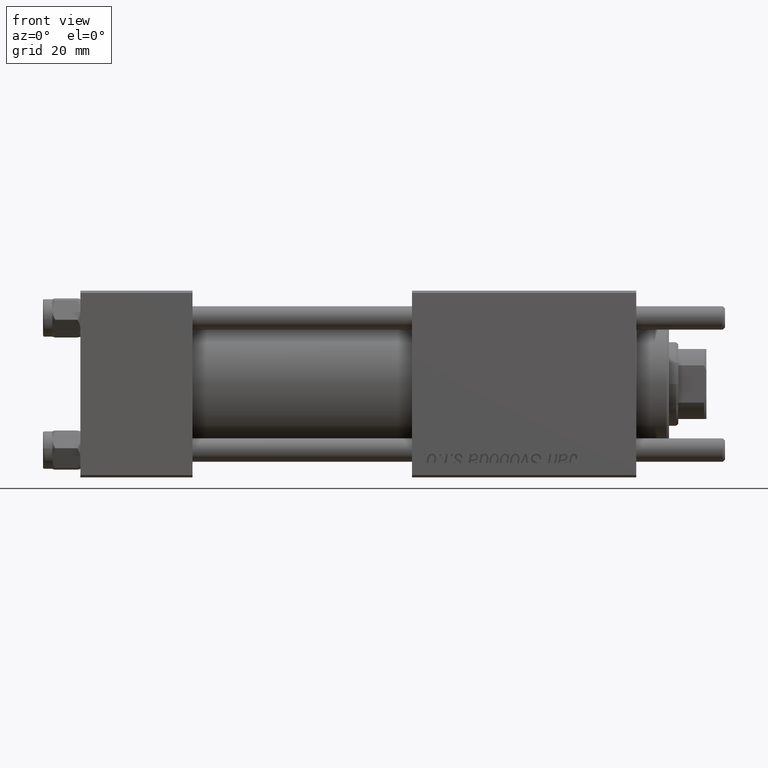
[diagram: clean part render]
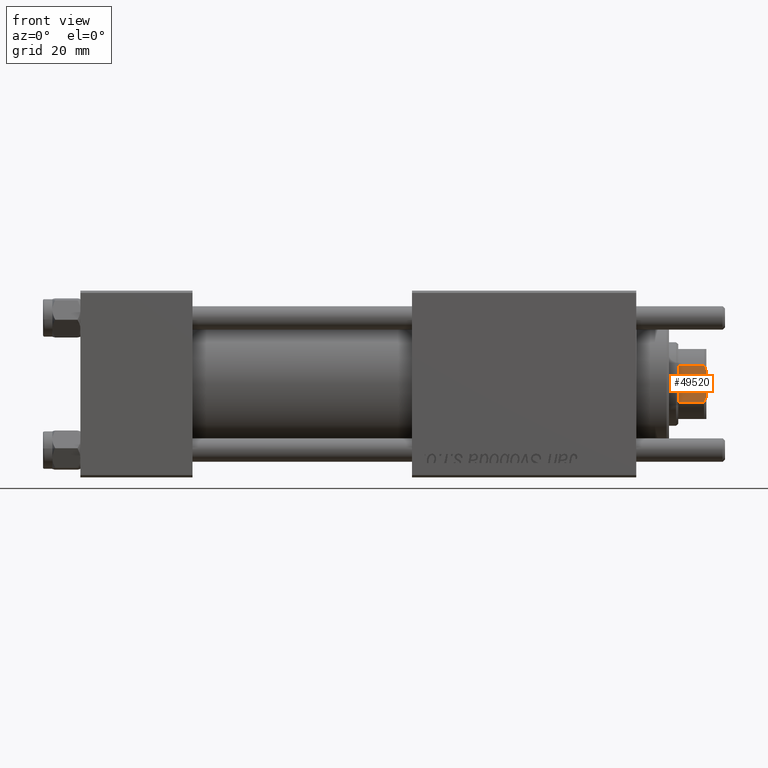
[diagram: same view with one face highlighted and labeled with its STEP entity id]
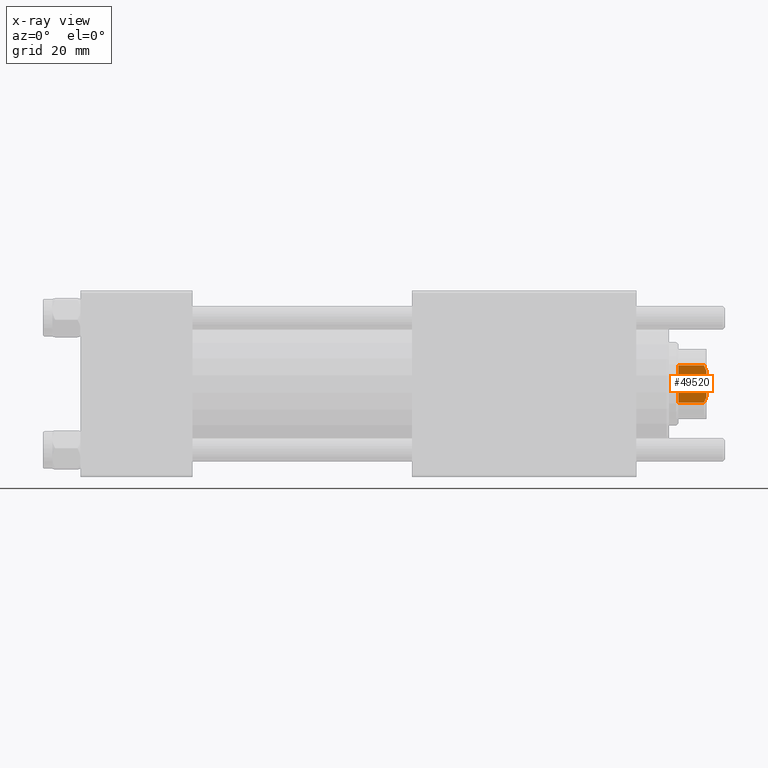
[diagram: x-ray of the same camera — body ghosted, the highlighted face saturated]
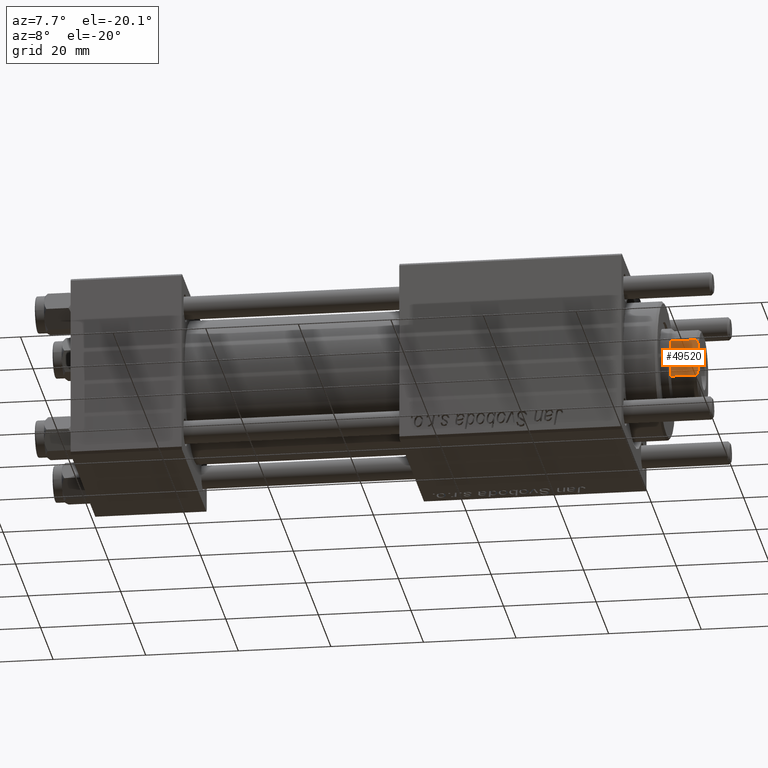
[diagram: same view with one face highlighted and labeled with its STEP entity id]
A machine part, front view. The second image highlights one B-rep face of the part: STEP entity #49520.
The next image is the same camera in x-ray: the body ghosted, the highlighted face saturated — about 0% of this face is hidden behind the body in this view.
A second angle (auxiliary view) of the same face is appended — the face is thin or edge-on in the first view.
In plain terms, the highlighted planar face has unit normal (0, 1, 0).
Its self-contained STEP definition (entity closure, byte-faithful):
#73 = ORIENTED_EDGE ( 'NONE', *, *, #36462, .T. ) ;
#1165 = ORIENTED_EDGE ( 'NONE', *, *, #38434, .T. ) ;
#2085 = LINE ( 'NONE', #2944, #49999 ) ;
#2621 = FACE_OUTER_BOUND ( 'NONE', #9218, .T. ) ;
#2944 = CARTESIAN_POINT ( 'NONE',  ( 7.500000000000000000, 4.000000000000001776, -0.001000000000001000089 ) ) ;
#3700 = CARTESIAN_POINT ( 'NONE',  ( 7.500000000000000888, 2.783882181414685686, 110.0000000000000000 ) ) ;
#3840 = ORIENTED_EDGE ( 'NONE', *, *, #26931, .F. ) ;
#5324 = DIRECTION ( 'NONE',  ( -1.156482317317871478E-16, 1.000000000000000000, -0.000000000000000000 ) ) ;
#6642 = PLANE ( 'NONE',  #53916 ) ;
#8400 = EDGE_CURVE ( 'NONE', #16599, #21967, #2085, .T. ) ;
#9218 = EDGE_LOOP ( 'NONE', ( #36314, #35440, #33140, #1165, #3840, #73 ) ) ;
#11335 = CARTESIAN_POINT ( 'NONE',  ( 7.500000000000000888, 2.783882181414685686, 110.0000000000000000 ) ) ;
#12800 = CARTESIAN_POINT ( 'NONE',  ( 7.500000000000000888, -2.783882181414683465, 110.0000000000000000 ) ) ;
#12826 = VERTEX_POINT ( 'NONE', #25149 ) ;
#12867 = LINE ( 'NONE', #16611, #31314 ) ;
#16599 = VERTEX_POINT ( 'NONE', #40748 ) ;
#16611 = CARTESIAN_POINT ( 'NONE',  ( 7.500000000000000000, -4.000000000000002665, -0.001000000000001000089 ) ) ;
#16631 = CARTESIAN_POINT ( 'NONE',  ( 7.500000000000000000, -4.000000000000002665, 109.4999999999998579 ) ) ;
#17494 = EDGE_CURVE ( 'NONE', #39850, #35235, #46477, .T. ) ;
#21138 = CARTESIAN_POINT ( 'NONE',  ( 7.500000000000000000, 4.000000000000001776, 109.4999999999998579 ) ) ;
#21967 = VERTEX_POINT ( 'NONE', #21138 ) ;
#22355 = VECTOR ( 'NONE', #5324, 1000.000000000000000 ) ;
#22527 = CARTESIAN_POINT ( 'NONE',  ( 7.500000000000000000, -4.000000000000002665, 109.4999999999998579 ) ) ;
#24143 = DIRECTION ( 'NONE',  ( -1.000000000000000000, -1.156482317317871478E-16, 0.000000000000000000 ) ) ;
#25149 = CARTESIAN_POINT ( 'NONE',  ( 7.500000000000000000, -4.000000000000002665, 104.0000000000000000 ) ) ;
#26931 = EDGE_CURVE ( 'NONE', #12826, #44007, #12867, .T. ) ;
#31314 = VECTOR ( 'NONE', #46695, 1000.000000000000000 ) ;
#33140 = ORIENTED_EDGE ( 'NONE', *, *, #17494, .F. ) ;
#34154 = CARTESIAN_POINT ( 'NONE',  ( 7.500000000000000000, 7.500000000000000000, 110.0000000000000000 ) ) ;
#34586 = CARTESIAN_POINT ( 'NONE',  ( 7.500000000000000888, -3.198463757182497869, 109.8557317173096379 ) ) ;
#35235 = VERTEX_POINT ( 'NONE', #3700 ) ;
#35440 = ORIENTED_EDGE ( 'NONE', *, *, #41789, .T. ) ;
#36314 = ORIENTED_EDGE ( 'NONE', *, *, #8400, .T. ) ;
#36462 = EDGE_CURVE ( 'NONE', #12826, #16599, #40012, .T. ) ;
#36561 = CARTESIAN_POINT ( 'NONE',  ( 7.500000000000000000, 4.000000000000001776, 109.4999999999998579 ) ) ;
#37129 = CARTESIAN_POINT ( 'NONE',  ( 7.500000000000000888, 3.198463757182493428, 109.8557317173096379 ) ) ;
#37267 = B_SPLINE_CURVE_WITH_KNOTS ( 'NONE', 3,
 ( #12800, #34586, #52897, #22527 ),
 .UNSPECIFIED., .F., .F.,
 ( 4, 4 ),
 ( 4.336808689942017736E-19, 0.001314892599675292944 ),
 .UNSPECIFIED. ) ;
#37311 = DIRECTION ( 'NONE',  ( -1.156482317317871478E-16, 1.000000000000000000, -0.000000000000000000 ) ) ;
#38434 = EDGE_CURVE ( 'NONE', #39850, #44007, #37267, .T. ) ;
#39717 = CARTESIAN_POINT ( 'NONE',  ( 7.500000000000000000, 7.500000000000000000, 104.0000000000000000 ) ) ;
#39850 = VERTEX_POINT ( 'NONE', #49590 ) ;
#40012 = LINE ( 'NONE', #39717, #22355 ) ;
#40748 = CARTESIAN_POINT ( 'NONE',  ( 7.500000000000000000, 4.000000000000001776, 103.9999999999999716 ) ) ;
#41104 = VECTOR ( 'NONE', #37311, 1000.000000000000000 ) ;
#41789 = EDGE_CURVE ( 'NONE', #21967, #35235, #43147, .T. ) ;
#42173 = CARTESIAN_POINT ( 'NONE',  ( 7.500000000000000000, 7.500000000000000000, 110.0000000000000000 ) ) ;
#43147 = B_SPLINE_CURVE_WITH_KNOTS ( 'NONE', 3,
 ( #36561, #50307, #37129, #11335 ),
 .UNSPECIFIED., .F., .F.,
 ( 4, 4 ),
 ( 9.540979117872439019E-18, 0.001314892599675281451 ),
 .UNSPECIFIED. ) ;
#44007 = VERTEX_POINT ( 'NONE', #16631 ) ;
#45386 = DIRECTION ( 'NONE',  ( -0.000000000000000000, -0.000000000000000000, 1.000000000000000000 ) ) ;
#46477 = LINE ( 'NONE', #42173, #41104 ) ;
#46695 = DIRECTION ( 'NONE',  ( -0.000000000000000000, -0.000000000000000000, 1.000000000000000000 ) ) ;
#49520 = ADVANCED_FACE ( 'NONE', ( #2621 ), #6642, .F. ) ;
#49590 = CARTESIAN_POINT ( 'NONE',  ( 7.500000000000000888, -2.783882181414683465, 110.0000000000000000 ) ) ;
#49999 = VECTOR ( 'NONE', #45386, 1000.000000000000000 ) ;
#50307 = CARTESIAN_POINT ( 'NONE',  ( 7.500000000000000000, 3.602928590769622907, 109.6868571337553675 ) ) ;
#51070 = DIRECTION ( 'NONE',  ( 1.156482317317871478E-16, -1.000000000000000000, 0.000000000000000000 ) ) ;
#52897 = CARTESIAN_POINT ( 'NONE',  ( 7.500000000000001776, -3.602928590769614914, 109.6868571337553675 ) ) ;
#53916 = AXIS2_PLACEMENT_3D ( 'NONE', #34154, #24143, #51070 ) ;